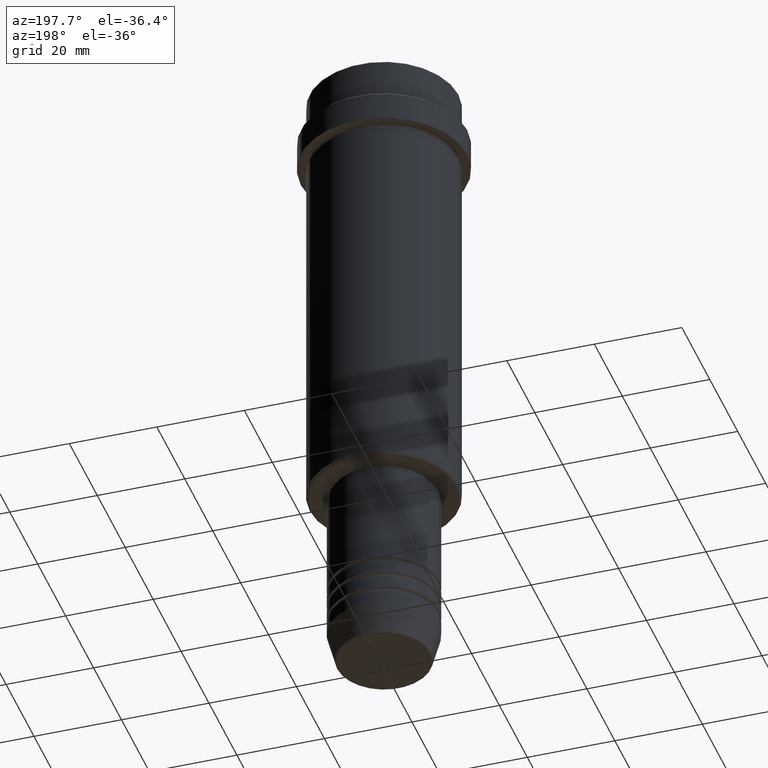
[diagram: clean part render]
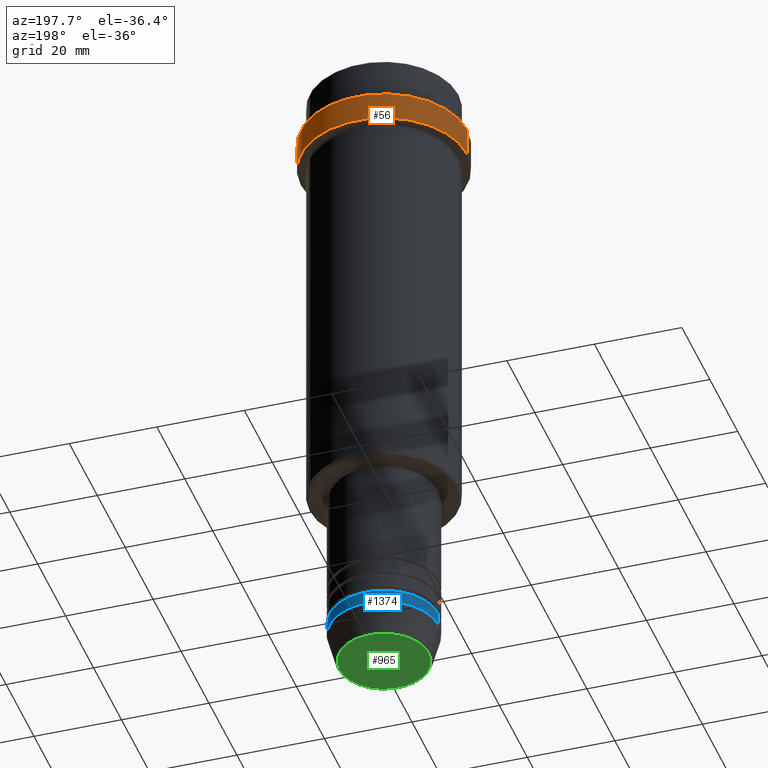
[diagram: same view with three faces highlighted in distinct colors, each labeled with its STEP entity id]
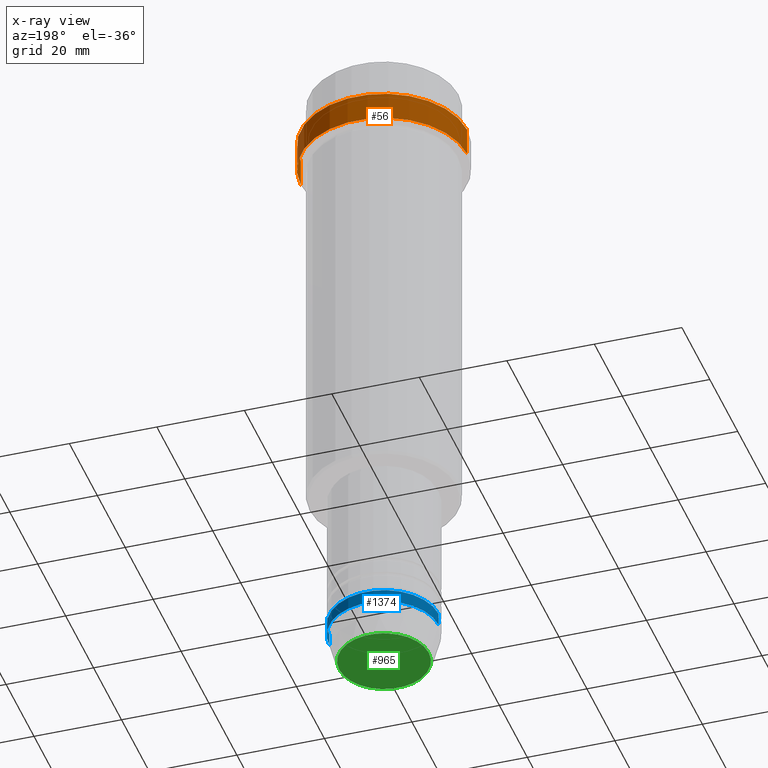
[diagram: x-ray of the same camera — body ghosted, the three highlighted faces saturated]
A machine part, auxiliary view with three faces highlighted in distinct colors.
The next image is the same camera in x-ray (body ghosted, the three faces saturated) — at least one of them is partly hidden behind the body in this view.
Their STEP definitions:

[orange] entity #56 — the highlighted cylindrical surface (partial cylindrical patch) has radius 19 mm, axis along (-0, -0, 1).
#16 = DIRECTION ( 'NONE',  ( 1.000000000000000000, 0.000000000000000000, 0.000000000000000000 ) ) ;
#42 = VERTEX_POINT ( 'NONE', #631 ) ;
#56 = ADVANCED_FACE ( 'NONE', ( #1411 ), #1069, .T. ) ;
#61 = VERTEX_POINT ( 'NONE', #982 ) ;
#67 = LINE ( 'NONE', #494, #497 ) ;
#109 = ORIENTED_EDGE ( 'NONE', *, *, #1145, .T. ) ;
#130 = EDGE_LOOP ( 'NONE', ( #109, #461, #1315, #785 ) ) ;
#134 = DIRECTION ( 'NONE',  ( -0.000000000000000000, -0.000000000000000000, 1.000000000000000000 ) ) ;
#139 = CARTESIAN_POINT ( 'NONE',  ( 18.99999999999998579, 0.000000000000000000, -10.50000000000001243 ) ) ;
#182 = LINE ( 'NONE', #940, #411 ) ;
#216 = EDGE_CURVE ( 'NONE', #61, #1083, #817, .T. ) ;
#386 = AXIS2_PLACEMENT_3D ( 'NONE', #806, #1118, #1361 ) ;
#403 = EDGE_CURVE ( 'NONE', #42, #61, #182, .T. ) ;
#411 = VECTOR ( 'NONE', #720, 1000.000000000000000 ) ;
#461 = ORIENTED_EDGE ( 'NONE', *, *, #403, .T. ) ;
#487 = DIRECTION ( 'NONE',  ( 1.000000000000000000, 0.000000000000000000, 0.000000000000000000 ) ) ;
#494 = CARTESIAN_POINT ( 'NONE',  ( 18.99999999999998579, 0.000000000000000000, 0.000000000000000000 ) ) ;
#497 = VECTOR ( 'NONE', #823, 1000.000000000000000 ) ;
#503 = CARTESIAN_POINT ( 'NONE',  ( 0.000000000000000000, 0.000000000000000000, -17.00000000000000000 ) ) ;
#611 = DIRECTION ( 'NONE',  ( -0.000000000000000000, -0.000000000000000000, 1.000000000000000000 ) ) ;
#631 = CARTESIAN_POINT ( 'NONE',  ( -18.99999999999998579, 2.326828918379969393E-15, -17.00000000000000000 ) ) ;
#720 = DIRECTION ( 'NONE',  ( -0.000000000000000000, -0.000000000000000000, 1.000000000000000000 ) ) ;
#785 = ORIENTED_EDGE ( 'NONE', *, *, #912, .F. ) ;
#806 = CARTESIAN_POINT ( 'NONE',  ( 0.000000000000000000, 0.000000000000000000, -10.50000000000001243 ) ) ;
#817 = CIRCLE ( 'NONE', #386, 18.99999999999998579 ) ;
#823 = DIRECTION ( 'NONE',  ( -0.000000000000000000, -0.000000000000000000, 1.000000000000000000 ) ) ;
#900 = CARTESIAN_POINT ( 'NONE',  ( 0.000000000000000000, 0.000000000000000000, 0.000000000000000000 ) ) ;
#912 = EDGE_CURVE ( 'NONE', #1095, #1083, #67, .T. ) ;
#940 = CARTESIAN_POINT ( 'NONE',  ( -18.99999999999998579, 2.326828918379969393E-15, 0.000000000000000000 ) ) ;
#973 = AXIS2_PLACEMENT_3D ( 'NONE', #503, #611, #487 ) ;
#982 = CARTESIAN_POINT ( 'NONE',  ( -18.99999999999998579, 2.326828918379969393E-15, -10.50000000000001243 ) ) ;
#1069 = CYLINDRICAL_SURFACE ( 'NONE', #1131, 18.99999999999998579 ) ;
#1083 = VERTEX_POINT ( 'NONE', #139 ) ;
#1095 = VERTEX_POINT ( 'NONE', #1196 ) ;
#1118 = DIRECTION ( 'NONE',  ( 0.000000000000000000, 0.000000000000000000, -1.000000000000000000 ) ) ;
#1131 = AXIS2_PLACEMENT_3D ( 'NONE', #900, #134, #16 ) ;
#1145 = EDGE_CURVE ( 'NONE', #1095, #42, #1379, .T. ) ;
#1196 = CARTESIAN_POINT ( 'NONE',  ( 18.99999999999998579, 0.000000000000000000, -17.00000000000000000 ) ) ;
#1315 = ORIENTED_EDGE ( 'NONE', *, *, #216, .T. ) ;
#1361 = DIRECTION ( 'NONE',  ( 1.000000000000000000, 0.000000000000000000, 0.000000000000000000 ) ) ;
#1379 = CIRCLE ( 'NONE', #973, 18.99999999999998579 ) ;
#1411 = FACE_OUTER_BOUND ( 'NONE', #130, .T. ) ;

[blue] entity #1374 — the highlighted cylindrical surface (partial cylindrical patch) has radius 12.5 mm, axis along (-0, -0, 1).
#95 = VECTOR ( 'NONE', #1262, 1000.000000000000000 ) ;
#146 = CARTESIAN_POINT ( 'NONE',  ( -12.50000000000000000, 1.530808498934191521E-15, -143.0000000000000284 ) ) ;
#151 = CARTESIAN_POINT ( 'NONE',  ( 0.000000000000000000, 0.000000000000000000, 0.000000000000000000 ) ) ;
#206 = DIRECTION ( 'NONE',  ( 1.000000000000000000, 0.000000000000000000, 0.000000000000000000 ) ) ;
#222 = CARTESIAN_POINT ( 'NONE',  ( -12.50000000000000000, 1.530808498934191521E-15, -140.0000000000000000 ) ) ;
#225 = VERTEX_POINT ( 'NONE', #926 ) ;
#245 = FACE_OUTER_BOUND ( 'NONE', #1134, .T. ) ;
#320 = EDGE_CURVE ( 'NONE', #225, #855, #1133, .T. ) ;
#366 = ORIENTED_EDGE ( 'NONE', *, *, #320, .T. ) ;
#450 = DIRECTION ( 'NONE',  ( -0.000000000000000000, -0.000000000000000000, 1.000000000000000000 ) ) ;
#459 = AXIS2_PLACEMENT_3D ( 'NONE', #560, #450, #974 ) ;
#501 = AXIS2_PLACEMENT_3D ( 'NONE', #151, #932, #1226 ) ;
#516 = ORIENTED_EDGE ( 'NONE', *, *, #1319, .F. ) ;
#542 = CARTESIAN_POINT ( 'NONE',  ( 12.50000000000000000, 0.000000000000000000, 0.000000000000000000 ) ) ;
#555 = CARTESIAN_POINT ( 'NONE',  ( 0.000000000000000000, 0.000000000000000000, -140.0000000000000000 ) ) ;
#560 = CARTESIAN_POINT ( 'NONE',  ( 0.000000000000000000, 0.000000000000000000, -143.0000000000000284 ) ) ;
#603 = EDGE_CURVE ( 'NONE', #1302, #721, #1255, .T. ) ;
#632 = ORIENTED_EDGE ( 'NONE', *, *, #603, .F. ) ;
#680 = CARTESIAN_POINT ( 'NONE',  ( 12.50000000000000000, 0.000000000000000000, -140.0000000000000000 ) ) ;
#721 = VERTEX_POINT ( 'NONE', #222 ) ;
#748 = DIRECTION ( 'NONE',  ( -0.000000000000000000, -0.000000000000000000, 1.000000000000000000 ) ) ;
#811 = CYLINDRICAL_SURFACE ( 'NONE', #501, 12.50000000000000000 ) ;
#814 = AXIS2_PLACEMENT_3D ( 'NONE', #555, #748, #206 ) ;
#855 = VERTEX_POINT ( 'NONE', #146 ) ;
#884 = DIRECTION ( 'NONE',  ( -0.000000000000000000, -0.000000000000000000, 1.000000000000000000 ) ) ;
#922 = ORIENTED_EDGE ( 'NONE', *, *, #1206, .T. ) ;
#926 = CARTESIAN_POINT ( 'NONE',  ( 12.50000000000000000, 0.000000000000000000, -143.0000000000000284 ) ) ;
#932 = DIRECTION ( 'NONE',  ( -0.000000000000000000, -0.000000000000000000, 1.000000000000000000 ) ) ;
#938 = VECTOR ( 'NONE', #884, 1000.000000000000000 ) ;
#974 = DIRECTION ( 'NONE',  ( 1.000000000000000000, 0.000000000000000000, 0.000000000000000000 ) ) ;
#1107 = LINE ( 'NONE', #542, #938 ) ;
#1133 = CIRCLE ( 'NONE', #459, 12.50000000000000000 ) ;
#1134 = EDGE_LOOP ( 'NONE', ( #366, #922, #632, #516 ) ) ;
#1206 = EDGE_CURVE ( 'NONE', #855, #721, #1248, .T. ) ;
#1226 = DIRECTION ( 'NONE',  ( 1.000000000000000000, 0.000000000000000000, 0.000000000000000000 ) ) ;
#1248 = LINE ( 'NONE', #1276, #95 ) ;
#1255 = CIRCLE ( 'NONE', #814, 12.50000000000000000 ) ;
#1262 = DIRECTION ( 'NONE',  ( -0.000000000000000000, -0.000000000000000000, 1.000000000000000000 ) ) ;
#1276 = CARTESIAN_POINT ( 'NONE',  ( -12.50000000000000000, 1.530808498934191521E-15, 0.000000000000000000 ) ) ;
#1302 = VERTEX_POINT ( 'NONE', #680 ) ;
#1319 = EDGE_CURVE ( 'NONE', #225, #1302, #1107, .T. ) ;
#1374 = ADVANCED_FACE ( 'NONE', ( #245 ), #811, .T. ) ;

[green] entity #965 — the highlighted planar face has unit normal (0, -0, 1).
#60 = EDGE_CURVE ( 'NONE', #1142, #1221, #188, .T. ) ;
#66 = CARTESIAN_POINT ( 'NONE',  ( -10.24069215899265828, 1.283696036640842178E-15, -150.0000000000000284 ) ) ;
#149 = DIRECTION ( 'NONE',  ( 0.000000000000000000, 0.000000000000000000, -1.000000000000000000 ) ) ;
#177 = DIRECTION ( 'NONE',  ( 1.000000000000000000, 0.000000000000000000, 0.000000000000000000 ) ) ;
#188 = CIRCLE ( 'NONE', #1059, 10.24069215899265828 ) ;
#295 = CARTESIAN_POINT ( 'NONE',  ( 10.24069215899265828, 0.000000000000000000, -150.0000000000000284 ) ) ;
#357 = EDGE_LOOP ( 'NONE', ( #552, #924 ) ) ;
#398 = EDGE_CURVE ( 'NONE', #1221, #1142, #1342, .T. ) ;
#544 = AXIS2_PLACEMENT_3D ( 'NONE', #1385, #736, #1272 ) ;
#549 = CARTESIAN_POINT ( 'NONE',  ( 0.000000000000000000, 0.000000000000000000, -150.0000000000000284 ) ) ;
#552 = ORIENTED_EDGE ( 'NONE', *, *, #398, .T. ) ;
#705 = AXIS2_PLACEMENT_3D ( 'NONE', #930, #1375, #177 ) ;
#736 = DIRECTION ( 'NONE',  ( 0.000000000000000000, -0.000000000000000000, 1.000000000000000000 ) ) ;
#924 = ORIENTED_EDGE ( 'NONE', *, *, #60, .T. ) ;
#930 = CARTESIAN_POINT ( 'NONE',  ( 0.000000000000000000, 0.000000000000000000, -150.0000000000000284 ) ) ;
#965 = ADVANCED_FACE ( 'NONE', ( #1289 ), #1144, .F. ) ;
#1059 = AXIS2_PLACEMENT_3D ( 'NONE', #549, #149, #1323 ) ;
#1142 = VERTEX_POINT ( 'NONE', #66 ) ;
#1144 = PLANE ( 'NONE',  #544 ) ;
#1221 = VERTEX_POINT ( 'NONE', #295 ) ;
#1272 = DIRECTION ( 'NONE',  ( 1.000000000000000000, 0.000000000000000000, 0.000000000000000000 ) ) ;
#1289 = FACE_OUTER_BOUND ( 'NONE', #357, .T. ) ;
#1323 = DIRECTION ( 'NONE',  ( 1.000000000000000000, 0.000000000000000000, 0.000000000000000000 ) ) ;
#1342 = CIRCLE ( 'NONE', #705, 10.24069215899265828 ) ;
#1375 = DIRECTION ( 'NONE',  ( 0.000000000000000000, 0.000000000000000000, -1.000000000000000000 ) ) ;
#1385 = CARTESIAN_POINT ( 'NONE',  ( 0.000000000000000000, 0.000000000000000000, -150.0000000000000284 ) ) ;